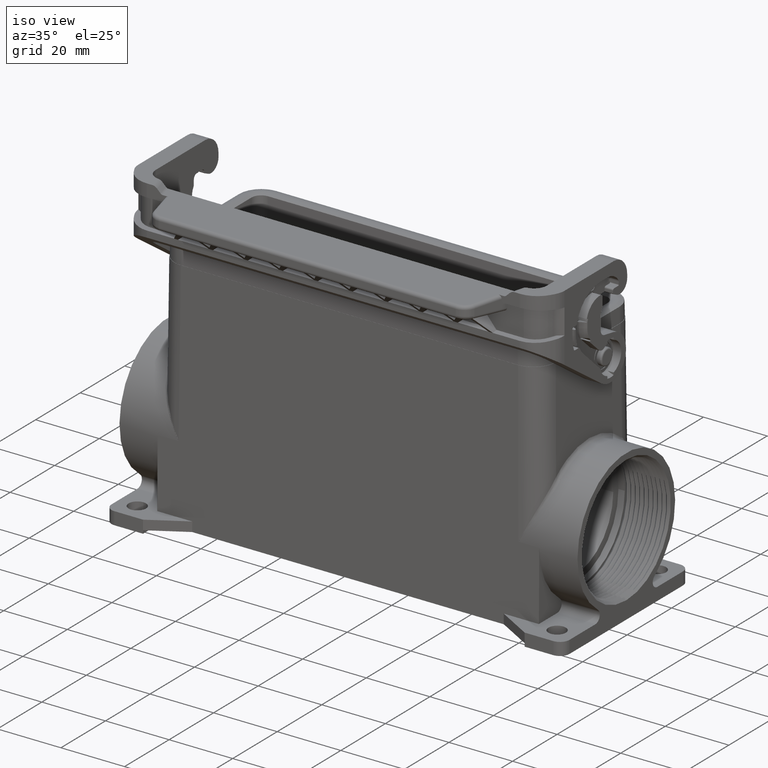
[diagram: clean part render]
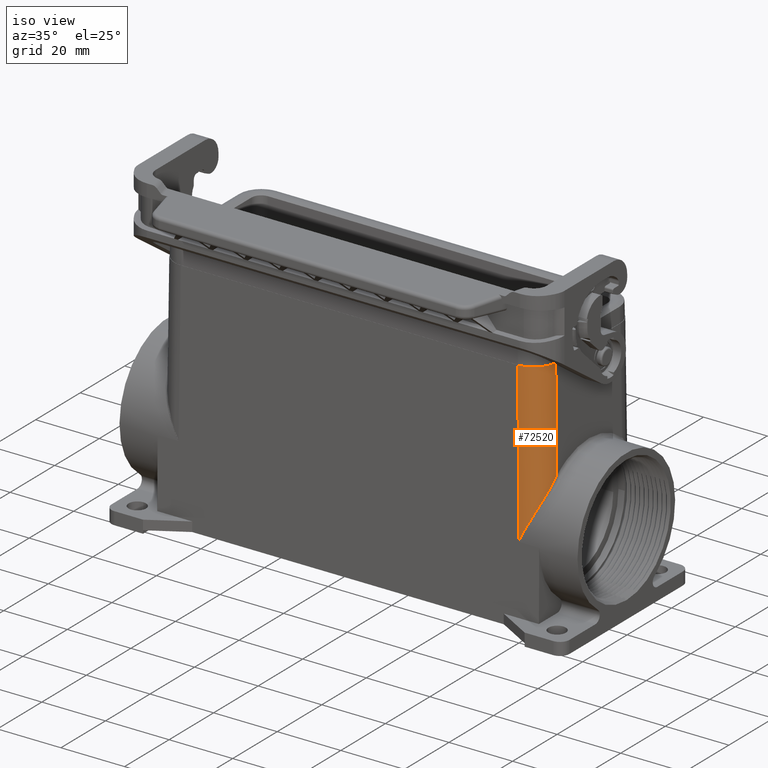
[diagram: same view with one face highlighted and labeled with its STEP entity id]
A machine part, iso view. The second image highlights one B-rep face of the part: STEP entity #72520.
In plain terms, the highlighted cylindrical surface (edge-blend (fillet) strip) has radius 7 mm, axis along (-0.0087, 0.0087, 0.9999).
Its self-contained STEP definition (entity closure, byte-faithful):
#1360=CARTESIAN_POINT('',(0.31857799999996,54.7053465385508,74.5));
#1370=VERTEX_POINT('',#1360);
#1400=CARTESIAN_POINT('',(7.31884454870011,54.7048134512998,74.5));
#1410=DIRECTION('',(0.,0.,1.));
#1420=DIRECTION('',(0.707106781186218,-0.707106781186877,0.));
#1430=AXIS2_PLACEMENT_3D('',#1400,#1410,#1420);
#1440=ELLIPSE('',#1430,7.00053308725135,7.);
#1450=CARTESIAN_POINT('',(7.31831146144915,61.70508,74.5));
#1460=VERTEX_POINT('',#1450);
#1470=EDGE_CURVE('',#1460,#1370,#1440,.T.);
#39500=CARTESIAN_POINT('',(0.0351852580328824,54.9887392805179,
42.0264082415494));
#39510=VERTEX_POINT('',#39500);
#39540=CARTESIAN_POINT('',(-0.331040563160613,55.3549651017114,
0.0610857484885968));
#39550=DIRECTION('',(0.00872620324394422,-0.00872620324394422,
0.99992385047757));
#39560=VECTOR('',#39550,1.);
#39570=LINE('',#39540,#39560);
#39580=EDGE_CURVE('',#39510,#1370,#39570,.T.);
#71480=CARTESIAN_POINT('',(6.66869289828858,55.3549651017114,
-2.07853959453272E-14));
#71490=DIRECTION('',(0.00872620324394422,-0.00872620324394422,
0.99992385047757));
#71500=DIRECTION('',(0.999961923064171,0.,-0.00872653549837393));
#71510=AXIS2_PLACEMENT_3D('',#71480,#71490,#71500);
#71520=CYLINDRICAL_SURFACE('',#71510,7.);
#71530=ORIENTED_EDGE('',*,*,#1470,.F.);
#71540=ORIENTED_EDGE('',*,*,#39580,.T.);
#71550=CARTESIAN_POINT('',(0.0351852580328824,54.9887392805179,
42.0264082415494));
#71560=CARTESIAN_POINT('',(0.0349046502623054,55.0221034113651,
41.9942537759025));
#71570=CARTESIAN_POINT('',(0.0348575386834256,55.0553553724907,
41.9619956485247));
#71580=CARTESIAN_POINT('',(0.0351712842075216,55.1124844947703,
41.90620882734));
#71590=CARTESIAN_POINT('',(0.0354227145097212,55.1364020323675,
41.8827421106143));
#71600=CARTESIAN_POINT('',(0.0370827336834338,55.2435717485291,
41.7770926265596));
#71610=CARTESIAN_POINT('',(0.0398136154685602,55.3262278929846,
41.6942498160425));
#71620=CARTESIAN_POINT('',(0.0480302102378971,55.4902717725413,
41.5271082481318));
#71630=CARTESIAN_POINT('',(0.0535188277127645,55.5716553507343,
41.4428107107286));
#71640=CARTESIAN_POINT('',(0.0671315379045581,55.7330880966335,
41.2728378558194));
#71650=CARTESIAN_POINT('',(0.075258182539514,55.8131333840315,
41.1871637285507));
#71660=CARTESIAN_POINT('',(0.0940334304902422,55.9718620244339,
41.0144812558225));
#71670=CARTESIAN_POINT('',(0.10468517806224,56.0505411921647,
40.9274736640664));
#71680=CARTESIAN_POINT('',(0.128395759231452,56.2064653777287,
40.7522203670347));
#71690=CARTESIAN_POINT('',(0.141456703799506,56.2837068770107,
40.6639757637815));
#71700=CARTESIAN_POINT('',(0.169876248602478,56.4367201152056,
40.4863111889672));
#71710=CARTESIAN_POINT('',(0.185236827065907,56.5124884445559,
40.3968922680689));
#71720=CARTESIAN_POINT('',(0.218149228460234,56.662521331556,
40.2169442054084));
#71730=CARTESIAN_POINT('',(0.235701655434596,56.7367782988977,
40.1264215662654));
#71740=CARTESIAN_POINT('',(0.280477462321144,56.9137252275845,
39.9072054750598));
#71750=CARTESIAN_POINT('',(0.308712890451915,57.015602076039,
39.7780700833201));
#71760=CARTESIAN_POINT('',(0.36904976247358,57.2162902628703,
39.5178551527835));
#71770=CARTESIAN_POINT('',(0.401153011398932,57.3150864422978,
39.3867875061973));
#71780=CARTESIAN_POINT('',(0.468968871996012,57.5095676103436,
39.1228606689812));
#71790=CARTESIAN_POINT('',(0.504684678349903,57.6052447429691,
38.9900046262009));
#71800=CARTESIAN_POINT('',(0.57948417707172,57.7934577609833,
38.7226415136743));
#71810=CARTESIAN_POINT('',(0.618570273465636,57.8859864070872,
38.5881378163843));
#71820=CARTESIAN_POINT('',(0.699904043510784,58.0679318940065,
38.3175399828941));
#71830=CARTESIAN_POINT('',(0.742155012785489,58.1573403879304,
38.1814487380535));
#71840=CARTESIAN_POINT('',(0.829591986916057,58.3329985014627,
37.9078491610597));
#71850=CARTESIAN_POINT('',(0.874779418620179,58.4192416580359,
37.7703444365932));
#71860=CARTESIAN_POINT('',(0.967893948093021,58.5885774207809,
37.4940165182129));
#71870=CARTESIAN_POINT('',(1.01582216806877,58.6716638079694,
37.3551969766219));
#71880=CARTESIAN_POINT('',(1.11423207087326,58.8346931707059,
37.0763412047871));
#71890=CARTESIAN_POINT('',(1.16471438241632,58.9146304026283,
36.9363087907164));
#71900=CARTESIAN_POINT('',(1.26818778576164,59.0715709766533,
36.6547681629185));
#71910=CARTESIAN_POINT('',(1.32118491846448,59.1485609218596,
36.513261474809));
#71920=CARTESIAN_POINT('',(1.4294092789482,59.29941684762,
36.2291972567429));
#71930=CARTESIAN_POINT('',(1.4846365083189,59.3732777225004,
36.0866437087492));
#71940=CARTESIAN_POINT('',(1.59717038140757,59.5178994439857,
35.8005584063676));
#71950=CARTESIAN_POINT('',(1.65447683333026,59.588655439894,
35.6570306216377));
#71960=CARTESIAN_POINT('',(1.77102517594054,59.7270892033168,
35.3690714809897));
#71970=CARTESIAN_POINT('',(1.83026658897124,59.7947625131812,
35.2246441531278));
#71980=CARTESIAN_POINT('',(1.95056323080613,59.9270693700744,
34.9349225592397));
#71990=CARTESIAN_POINT('',(2.01161812966575,59.9916981287665,
34.7896322038221));
#72000=CARTESIAN_POINT('',(2.13540485167964,60.1179273935521,
34.4982742318264));
#72010=CARTESIAN_POINT('',(2.19813581767544,60.1795240136061,
34.3522106828155));
#72020=CARTESIAN_POINT('',(2.3251577660152,60.2997163711765,
34.0593604369784));
#72030=CARTESIAN_POINT('',(2.38944776466278,60.3583084353416,
33.9125778005713));
#72040=CARTESIAN_POINT('',(2.51947551023714,60.4725167150448,
33.6183449134942));
#72050=CARTESIAN_POINT('',(2.58521162525929,60.528129170061,
33.470899814782));
#72060=CARTESIAN_POINT('',(2.73048525033401,60.6465606740058,
33.1476717058359));
#72070=CARTESIAN_POINT('',(2.81028664838276,60.7087624647544,
32.9717891034485));
#72080=CARTESIAN_POINT('',(2.97161943875821,60.8290506058533,
32.6192249902705));
#72090=CARTESIAN_POINT('',(3.05314783473787,60.8871316138845,
32.4425518014084));
#72100=CARTESIAN_POINT('',(3.21778001509523,60.9992186162599,
32.0884776311304));
#72110=CARTESIAN_POINT('',(3.30088135823543,61.053220183568,
31.9110833824022));
#72120=CARTESIAN_POINT('',(3.46851223444185,61.1571855284354,
31.5556370403321));
#72130=CARTESIAN_POINT('',(3.55303915308311,61.2071453623722,
31.3775916574885));
#72140=CARTESIAN_POINT('',(3.72339538860761,61.3030700185576,
31.0208807260486));
#72150=CARTESIAN_POINT('',(3.80922214093575,61.3490307245553,
30.8422217828597));
#72160=CARTESIAN_POINT('',(3.98203640574305,61.436983144909,
30.484366429591));
#72170=CARTESIAN_POINT('',(4.06902108159314,61.4789716567711,
30.3051766546609));
#72180=CARTESIAN_POINT('',(4.24402834034042,61.5590112014815,
29.9463125309318));
#72190=CARTESIAN_POINT('',(4.33204801462068,61.5970593284551,
29.7666447717894));
#72200=CARTESIAN_POINT('',(4.50900603603498,61.6692458051127,
29.4068788030145));
#72210=CARTESIAN_POINT('',(4.59794139196499,61.703381620719,
29.2267871511892));
#72220=CARTESIAN_POINT('',(4.77669236357518,61.7677958475211,
28.8660717307621));
#72230=CARTESIAN_POINT('',(4.8665055747942,61.7980687661045,
28.6854542263582));
#72240=CARTESIAN_POINT('',(5.04682939482926,61.8547461916988,
28.3238849686448));
#72250=CARTESIAN_POINT('',(5.13733689961259,61.8811487694709,
28.142939719261));
#72260=CARTESIAN_POINT('',(5.31894420084392,61.9301051511058,
27.780759332393));
#72270=CARTESIAN_POINT('',(5.41004086007136,61.9526572901589,
27.5995306637726));
#72280=CARTESIAN_POINT('',(5.59272329591037,61.9939290352103,
27.2368284762344));
#72290=CARTESIAN_POINT('',(5.68430590116931,62.0126472790556,
27.0553614015375));
#72300=CARTESIAN_POINT('',(5.86786726174647,62.0462659147296,
26.6922108839367));
#72310=CARTESIAN_POINT('',(5.95984285055813,62.0611649175617,
26.5105338513082));
#72320=CARTESIAN_POINT('',(6.1440849417387,62.0871534572827,
26.1470191021919));
#72330=CARTESIAN_POINT('',(6.23634823065944,62.0982421668576,
25.9651877931162));
#72340=CARTESIAN_POINT('',(6.42107014494503,62.1166174171941,
25.6014031121448));
#72350=CARTESIAN_POINT('',(6.51352554687095,62.1239033444034,
25.4194561349459));
#72360=CARTESIAN_POINT('',(6.69853510752102,62.1346769172258,
25.0554820970765));
#72370=CARTESIAN_POINT('',(6.79109595472444,62.1381641970397,
24.8734664688854));
#72380=CARTESIAN_POINT('',(6.88363857758586,62.1397528838633,
24.691420990291));
#72390=B_SPLINE_CURVE_WITH_KNOTS('',3,(#71550,#71560,#71570,#71580,
#71590,#71600,#71610,#71620,#71630,#71640,#71650,#71660,#71670,#71680,
#71690,#71700,#71710,#71720,#71730,#71740,#71750,#71760,#71770,#71780,
#71790,#71800,#71810,#71820,#71830,#71840,#71850,#71860,#71870,#71880,
#71890,#71900,#71910,#71920,#71930,#71940,#71950,#71960,#71970,#71980,
#71990,#72000,#72010,#72020,#72030,#72040,#72050,#72060,#72070,#72080,
#72090,#72100,#72110,#72120,#72130,#72140,#72150,#72160,#72170,#72180,
#72190,#72200,#72210,#72220,#72230,#72240,#72250,#72260,#72270,#72280,
#72290,#72300,#72310,#72320,#72330,#72340,#72350,#72360,#72370,#72380),
.UNSPECIFIED.,.F.,.F.,(4,2,2,2,2,2,2,2,2,2,2,2,2,2,2,2,2,2,2,2,2,2,2,2,2
,2,2,2,2,2,2,2,2,2,2,2,2,2,2,2,2,4),(0.,0.140937205725612,
0.242815476882431,0.598447524330268,0.954474536828595,1.31087643314708,
1.66776315338869,2.02501078923624,2.38262228808338,2.74057723931693,
3.24476798479472,3.74959435186661,4.255059134748,4.76110183712112,
5.26792450852109,5.77526808656642,6.28312541270583,6.7914484922646,
7.3014690596932,7.81190560715508,8.32274739419628,8.8339569020928,
9.34561386918395,9.85759430358831,10.3698866699465,10.8824618085552,
11.4914716616684,12.1008234798557,12.7105000490409,13.3204618402538,
13.9307662088482,14.541304087379,15.152058299306,15.7629983133945,
16.3746137524413,16.9863707337492,17.5982517633476,18.2102321954198,
18.8223392593537,19.4345053023558,20.046717934349,20.658951877582),
.UNSPECIFIED.);
#72400=CARTESIAN_POINT('',(6.88363857758586,62.1397528838633,
24.691420990291));
#72410=VERTEX_POINT('',#72400);
#72420=EDGE_CURVE('',#39510,#72410,#72390,.T.);
#72430=ORIENTED_EDGE('',*,*,#72420,.F.);
#72440=CARTESIAN_POINT('',(6.66869289828858,62.3546985631606,
0.0610857484885968));
#72450=DIRECTION('',(0.00872620324394422,-0.00872620324394422,
0.99992385047757));
#72460=VECTOR('',#72450,1.);
#72470=LINE('',#72440,#72460);
#72480=EDGE_CURVE('',#72410,#1460,#72470,.T.);
#72490=ORIENTED_EDGE('',*,*,#72480,.F.);
#72500=EDGE_LOOP('',(#72490,#72430,#71540,#71530));
#72510=FACE_OUTER_BOUND('',#72500,.T.);
#72520=ADVANCED_FACE('',(#72510),#71520,.T.);